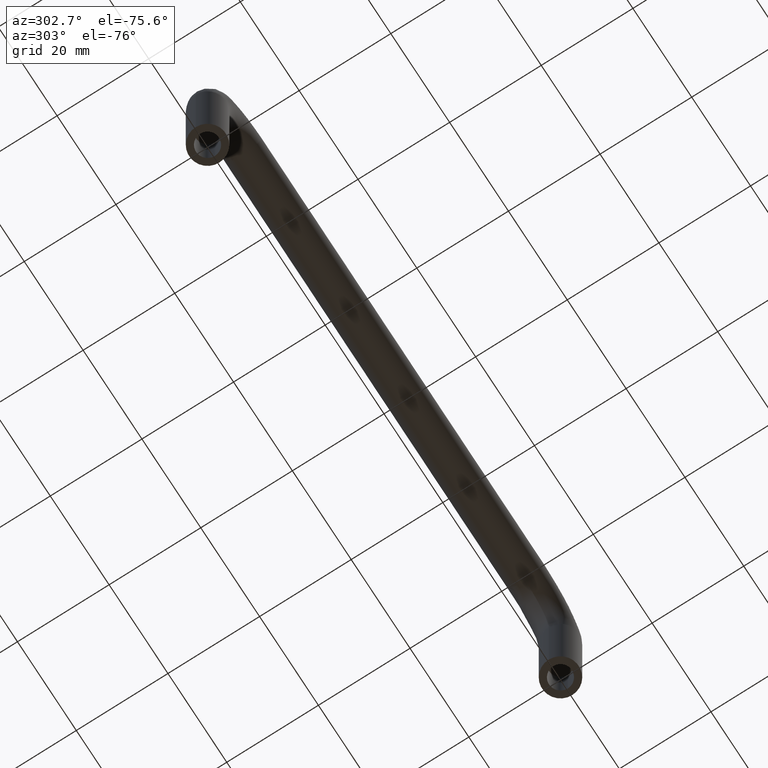
[diagram: clean part render]
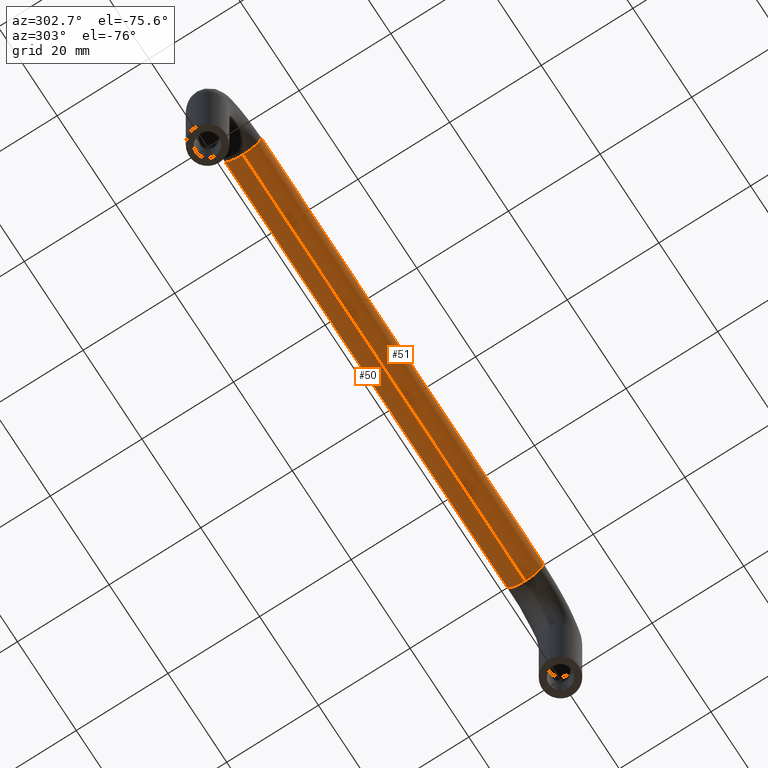
[diagram: same view with one multi-face feature highlighted, each face labeled with its STEP entity id]
A machine part, auxiliary view. The highlighted faces form ONE feature: a constant-radius fillet chain: 2 tangent blend faces with common blend radius 4 mm. The faces share edges in the B-rep.
Their STEP definitions:
[1] entity #50 (Cylinder):
#50=ADVANCED_FACE('',(#161),#160,.T.);
#160=CYLINDRICAL_SURFACE('',#447,4.00000000000E+00);
#161=FACE_OUTER_BOUND('',#448,.T.);
#444=CARTESIAN_POINT('',(-2.95822839458E-31,0.00000000000E+00,4.00000000000E+00));
#445=DIRECTION('',(-1.00000000000E+00,0.00000000000E+00,-1.08420217250E-16));
#446=DIRECTION('',(-1.08420217250E-16,-0.00000000000E+00,1.00000000000E+00));
#447=AXIS2_PLACEMENT_3D('',#444,#445,#446);
#448=EDGE_LOOP('',(#520,#521,#522,#523));
#520=ORIENTED_EDGE('',*,*,#568,.F.);
#521=ORIENTED_EDGE('',*,*,#578,.F.);
#522=ORIENTED_EDGE('',*,*,#563,.T.);
#523=ORIENTED_EDGE('',*,*,#579,.T.);
#563=EDGE_CURVE('',#587,#586,#662,.T.);
#568=EDGE_CURVE('',#683,#676,#696,.T.);
#578=EDGE_CURVE('',#587,#683,#762,.T.);
#579=EDGE_CURVE('',#586,#676,#768,.T.);
#586=VERTEX_POINT('',#810);
#587=VERTEX_POINT('',#811);
#662=CIRCLE('',#870,4.00000000000E+00);
#676=VERTEX_POINT('',#877);
#683=VERTEX_POINT('',#882);
#696=CIRCLE('',#897,4.00000000000E+00);
#762=(BOUNDED_CURVE() B_SPLINE_CURVE(1,(#936,#937),.UNSPECIFIED.,.F.,.F.) B_SPLINE_CURVE_WITH_KNOTS((2,2),(8.33333332085E-02,9.16666666563E-01),.UNSPECIFIED.) CURVE() GEOMETRIC_REPRESENTATION_ITEM() RATIONAL_B_SPLINE_CURVE((1.00000000000E+00,1.00000000000E+00)) REPRESENTATION_ITEM('') );
#768=(BOUNDED_CURVE() B_SPLINE_CURVE(1,(#938,#939),.UNSPECIFIED.,.F.,.F.) B_SPLINE_CURVE_WITH_KNOTS((2,2),(8.33333333333E-02,9.16666666667E-01),.UNSPECIFIED.) CURVE() GEOMETRIC_REPRESENTATION_ITEM() RATIONAL_B_SPLINE_CURVE((7.50000000000E-01,7.50000000000E-01)) REPRESENTATION_ITEM('') );
#810=CARTESIAN_POINT('',(4.79999999995E+01,4.44089209850E-16,5.32907051820E-15));
#811=CARTESIAN_POINT('',(4.79999999995E+01,0.00000000000E+00,8.00000000000E+00));
#867=CARTESIAN_POINT('',(4.79999999995E+01,0.00000000000E+00,4.00000000000E+00));
#868=DIRECTION('',(-1.00000000000E+00,0.00000000000E+00,0.00000000000E+00));
#869=DIRECTION('',(-0.00000000000E+00,-0.00000000000E+00,-1.00000000000E+00));
#870=AXIS2_PLACEMENT_3D('',#867,#868,#869);
#877=CARTESIAN_POINT('',(-4.79999999995E+01,4.44089209850E-16,-8.88178419700E-16));
#882=CARTESIAN_POINT('',(-4.79999999995E+01,0.00000000000E+00,8.00000000000E+00));
#894=CARTESIAN_POINT('',(-4.79999999995E+01,0.00000000000E+00,4.00000000000E+00));
#895=DIRECTION('',(-1.00000000000E+00,-2.73691106313E-48,-9.17343993978E-112));
#896=DIRECTION('',(-0.00000000000E+00,3.35174937299E-64,-1.00000000000E+00));
#897=AXIS2_PLACEMENT_3D('',#894,#895,#896);
#936=CARTESIAN_POINT('',(4.80000000139E+01,0.00000000000E+00,8.00000000000E+00));
#937=CARTESIAN_POINT('',(-4.79999999876E+01,0.00000000000E+00,8.00000000000E+00));
#938=CARTESIAN_POINT('',(4.79999999995E+01,-1.48029736617E-16,4.30519817327E-15));
#939=CARTESIAN_POINT('',(-4.79999999995E+01,-1.48029736617E-16,-5.93352527605E-15));
[2] entity #51 (Cylinder):
#51=ADVANCED_FACE('',(#171),#170,.T.);
#170=CYLINDRICAL_SURFACE('',#452,4.00000000000E+00);
#171=FACE_OUTER_BOUND('',#453,.T.);
#449=CARTESIAN_POINT('',(-2.95822839458E-31,0.00000000000E+00,4.00000000000E+00));
#450=DIRECTION('',(-1.00000000000E+00,0.00000000000E+00,-1.08420217250E-16));
#451=DIRECTION('',(-1.08420217250E-16,-0.00000000000E+00,1.00000000000E+00));
#452=AXIS2_PLACEMENT_3D('',#449,#450,#451);
#453=EDGE_LOOP('',(#524,#525,#526,#527));
#524=ORIENTED_EDGE('',*,*,#552,.T.);
#525=ORIENTED_EDGE('',*,*,#578,.T.);
#526=ORIENTED_EDGE('',*,*,#566,.F.);
#527=ORIENTED_EDGE('',*,*,#579,.F.);
#552=EDGE_CURVE('',#586,#587,#588,.T.);
#566=EDGE_CURVE('',#676,#683,#684,.T.);
#578=EDGE_CURVE('',#587,#683,#762,.T.);
#579=EDGE_CURVE('',#586,#676,#768,.T.);
#586=VERTEX_POINT('',#810);
#587=VERTEX_POINT('',#811);
#588=CIRCLE('',#815,4.00000000000E+00);
#676=VERTEX_POINT('',#877);
#683=VERTEX_POINT('',#882);
#684=CIRCLE('',#886,4.00000000000E+00);
#762=(BOUNDED_CURVE() B_SPLINE_CURVE(1,(#936,#937),.UNSPECIFIED.,.F.,.F.) B_SPLINE_CURVE_WITH_KNOTS((2,2),(8.33333332085E-02,9.16666666563E-01),.UNSPECIFIED.) CURVE() GEOMETRIC_REPRESENTATION_ITEM() RATIONAL_B_SPLINE_CURVE((1.00000000000E+00,1.00000000000E+00)) REPRESENTATION_ITEM('') );
#768=(BOUNDED_CURVE() B_SPLINE_CURVE(1,(#938,#939),.UNSPECIFIED.,.F.,.F.) B_SPLINE_CURVE_WITH_KNOTS((2,2),(8.33333333333E-02,9.16666666667E-01),.UNSPECIFIED.) CURVE() GEOMETRIC_REPRESENTATION_ITEM() RATIONAL_B_SPLINE_CURVE((7.50000000000E-01,7.50000000000E-01)) REPRESENTATION_ITEM('') );
#810=CARTESIAN_POINT('',(4.79999999995E+01,4.44089209850E-16,5.32907051820E-15));
#811=CARTESIAN_POINT('',(4.79999999995E+01,0.00000000000E+00,8.00000000000E+00));
#812=CARTESIAN_POINT('',(4.79999999995E+01,0.00000000000E+00,4.00000000000E+00));
#813=DIRECTION('',(-1.00000000000E+00,0.00000000000E+00,0.00000000000E+00));
#814=DIRECTION('',(-0.00000000000E+00,-1.11022302463E-16,1.00000000000E+00));
#815=AXIS2_PLACEMENT_3D('',#812,#813,#814);
#877=CARTESIAN_POINT('',(-4.79999999995E+01,4.44089209850E-16,-8.88178419700E-16));
#882=CARTESIAN_POINT('',(-4.79999999995E+01,0.00000000000E+00,8.00000000000E+00));
#883=CARTESIAN_POINT('',(-4.79999999995E+01,0.00000000000E+00,4.00000000000E+00));
#884=DIRECTION('',(-1.00000000000E+00,-1.35963107344E-32,-1.50949372273E-48));
#885=DIRECTION('',(-0.00000000000E+00,-1.11022302462E-16,1.00000000000E+00));
#886=AXIS2_PLACEMENT_3D('',#883,#884,#885);
#936=CARTESIAN_POINT('',(4.80000000139E+01,0.00000000000E+00,8.00000000000E+00));
#937=CARTESIAN_POINT('',(-4.79999999876E+01,0.00000000000E+00,8.00000000000E+00));
#938=CARTESIAN_POINT('',(4.79999999995E+01,-1.48029736617E-16,4.30519817327E-15));
#939=CARTESIAN_POINT('',(-4.79999999995E+01,-1.48029736617E-16,-5.93352527605E-15));